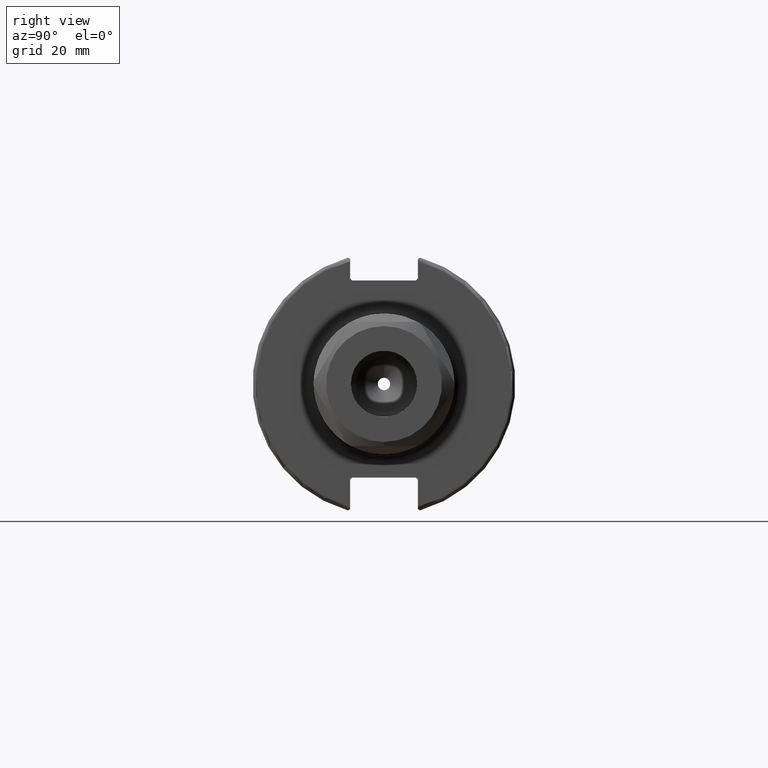
[diagram: clean part render]
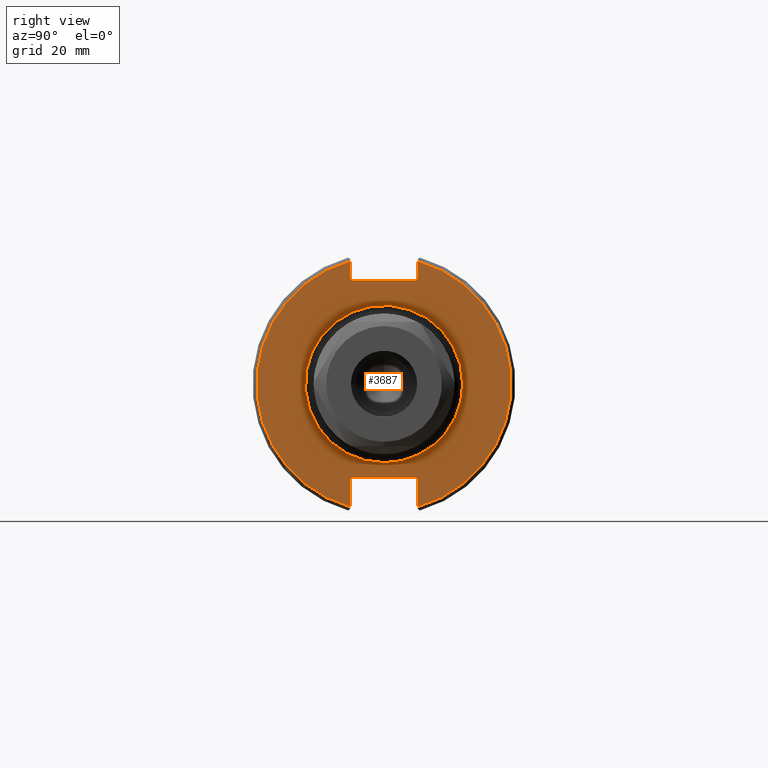
[diagram: same view with one face highlighted and labeled with its STEP entity id]
A machine part, right view. The second image highlights one B-rep face of the part: STEP entity #3687.
In plain terms, the highlighted planar face has unit normal (1, 0, 0).
Its self-contained STEP definition (entity closure, byte-faithful):
#162=FACE_BOUND('',#579,.T.);
#210=PLANE('',#4042);
#369=FACE_OUTER_BOUND('',#578,.T.);
#578=EDGE_LOOP('',(#2543,#2544,#2545,#2546,#2547,#2548,#2549,#2550,#2551,
#2552,#2553,#2554));
#579=EDGE_LOOP('',(#2555,#2556));
#831=LINE('',#5881,#1019);
#832=LINE('',#5883,#1020);
#833=LINE('',#5885,#1021);
#834=LINE('',#5887,#1022);
#835=LINE('',#5889,#1023);
#836=LINE('',#5893,#1024);
#837=LINE('',#5895,#1025);
#838=LINE('',#5897,#1026);
#839=LINE('',#5899,#1027);
#840=LINE('',#5900,#1028);
#1019=VECTOR('',#4636,10.);
#1020=VECTOR('',#4637,10.);
#1021=VECTOR('',#4638,10.);
#1022=VECTOR('',#4639,10.);
#1023=VECTOR('',#4640,10.);
#1024=VECTOR('',#4643,10.);
#1025=VECTOR('',#4644,10.);
#1026=VECTOR('',#4645,10.);
#1027=VECTOR('',#4646,10.);
#1028=VECTOR('',#4647,10.);
#1220=CIRCLE('',#4035,19.);
#1221=CIRCLE('',#4036,19.);
#1226=CIRCLE('',#4043,30.75);
#1227=CIRCLE('',#4044,30.75);
#1516=VERTEX_POINT('',#5862);
#1517=VERTEX_POINT('',#5864);
#1521=VERTEX_POINT('',#5877);
#1522=VERTEX_POINT('',#5878);
#1523=VERTEX_POINT('',#5880);
#1524=VERTEX_POINT('',#5882);
#1525=VERTEX_POINT('',#5884);
#1526=VERTEX_POINT('',#5886);
#1527=VERTEX_POINT('',#5888);
#1528=VERTEX_POINT('',#5890);
#1529=VERTEX_POINT('',#5892);
#1530=VERTEX_POINT('',#5894);
#1531=VERTEX_POINT('',#5896);
#1532=VERTEX_POINT('',#5898);
#1932=EDGE_CURVE('',#1516,#1517,#1220,.T.);
#1933=EDGE_CURVE('',#1517,#1516,#1221,.T.);
#1939=EDGE_CURVE('',#1521,#1522,#1226,.T.);
#1940=EDGE_CURVE('',#1521,#1523,#831,.T.);
#1941=EDGE_CURVE('',#1524,#1523,#832,.T.);
#1942=EDGE_CURVE('',#1524,#1525,#833,.T.);
#1943=EDGE_CURVE('',#1526,#1525,#834,.T.);
#1944=EDGE_CURVE('',#1526,#1527,#835,.T.);
#1945=EDGE_CURVE('',#1528,#1527,#1227,.T.);
#1946=EDGE_CURVE('',#1528,#1529,#836,.T.);
#1947=EDGE_CURVE('',#1530,#1529,#837,.T.);
#1948=EDGE_CURVE('',#1530,#1531,#838,.T.);
#1949=EDGE_CURVE('',#1532,#1531,#839,.T.);
#1950=EDGE_CURVE('',#1532,#1522,#840,.T.);
#2543=ORIENTED_EDGE('',*,*,#1939,.F.);
#2544=ORIENTED_EDGE('',*,*,#1940,.T.);
#2545=ORIENTED_EDGE('',*,*,#1941,.F.);
#2546=ORIENTED_EDGE('',*,*,#1942,.T.);
#2547=ORIENTED_EDGE('',*,*,#1943,.F.);
#2548=ORIENTED_EDGE('',*,*,#1944,.T.);
#2549=ORIENTED_EDGE('',*,*,#1945,.F.);
#2550=ORIENTED_EDGE('',*,*,#1946,.T.);
#2551=ORIENTED_EDGE('',*,*,#1947,.F.);
#2552=ORIENTED_EDGE('',*,*,#1948,.T.);
#2553=ORIENTED_EDGE('',*,*,#1949,.F.);
#2554=ORIENTED_EDGE('',*,*,#1950,.T.);
#2555=ORIENTED_EDGE('',*,*,#1933,.F.);
#2556=ORIENTED_EDGE('',*,*,#1932,.F.);
#3687=ADVANCED_FACE('',(#369,#162),#210,.T.);
#4035=AXIS2_PLACEMENT_3D('',#5865,#4617,#4618);
#4036=AXIS2_PLACEMENT_3D('',#5866,#4619,#4620);
#4042=AXIS2_PLACEMENT_3D('',#5876,#4632,#4633);
#4043=AXIS2_PLACEMENT_3D('',#5879,#4634,#4635);
#4044=AXIS2_PLACEMENT_3D('',#5891,#4641,#4642);
#4617=DIRECTION('center_axis',(1.,0.,0.));
#4618=DIRECTION('ref_axis',(0.,-1.,-1.22464679914735E-16));
#4619=DIRECTION('center_axis',(1.,0.,0.));
#4620=DIRECTION('ref_axis',(0.,-1.,-1.22464679914735E-16));
#4632=DIRECTION('center_axis',(1.,0.,0.));
#4633=DIRECTION('ref_axis',(0.,0.,-1.));
#4634=DIRECTION('center_axis',(-1.,0.,0.));
#4635=DIRECTION('ref_axis',(0.,1.,-6.12323399573677E-17));
#4636=DIRECTION('',(0.,0.,-1.));
#4637=DIRECTION('',(0.,0.707106781186549,0.707106781186546));
#4638=DIRECTION('',(0.,-1.,0.));
#4639=DIRECTION('',(0.,0.70710678118655,-0.707106781186545));
#4640=DIRECTION('',(0.,0.,1.));
#4641=DIRECTION('center_axis',(-1.,0.,0.));
#4642=DIRECTION('ref_axis',(0.,-1.,1.60812264967664E-16));
#4643=DIRECTION('',(0.,0.,1.));
#4644=DIRECTION('',(0.,-0.707106781186549,-0.707106781186546));
#4645=DIRECTION('',(0.,1.,0.));
#4646=DIRECTION('',(0.,-0.707106781186549,0.707106781186546));
#4647=DIRECTION('',(0.,0.,-1.));
#5862=CARTESIAN_POINT('',(19.05,-2.32682891837997E-15,-19.));
#5864=CARTESIAN_POINT('',(19.05,19.,4.65365783675994E-15));
#5865=CARTESIAN_POINT('Origin',(19.05,0.,0.));
#5866=CARTESIAN_POINT('Origin',(19.05,0.,0.));
#5876=CARTESIAN_POINT('Origin',(19.05,0.,0.));
#5877=CARTESIAN_POINT('',(19.05,8.19,29.6392712461019));
#5878=CARTESIAN_POINT('',(19.05,8.19,-29.6392712461019));
#5879=CARTESIAN_POINT('Origin',(19.05,0.,0.));
#5880=CARTESIAN_POINT('',(19.05,8.19,25.5));
#5881=CARTESIAN_POINT('',(19.05,8.19,12.5));
#5882=CARTESIAN_POINT('',(19.05,7.69,25.));
#5883=CARTESIAN_POINT('',(19.05,-0.35750000000001,16.9525));
#5884=CARTESIAN_POINT('',(19.05,-7.69,25.));
#5885=CARTESIAN_POINT('',(19.05,0.,25.));
#5886=CARTESIAN_POINT('',(19.05,-8.19,25.5));
#5887=CARTESIAN_POINT('',(19.05,0.357500000000014,16.9525));
#5888=CARTESIAN_POINT('',(19.05,-8.19,29.6392712461019));
#5889=CARTESIAN_POINT('',(19.05,-8.19,12.5));
#5890=CARTESIAN_POINT('',(19.05,-8.19,-29.6392712461019));
#5891=CARTESIAN_POINT('Origin',(19.05,0.,0.));
#5892=CARTESIAN_POINT('',(19.05,-8.19,-23.1));
#5893=CARTESIAN_POINT('',(19.05,-8.19,-11.3));
#5894=CARTESIAN_POINT('',(19.05,-7.69,-22.6));
#5895=CARTESIAN_POINT('',(19.05,-0.242499999999991,-15.1525));
#5896=CARTESIAN_POINT('',(19.05,7.69,-22.6));
#5897=CARTESIAN_POINT('',(19.05,-2.77555756156289E-16,-22.6));
#5898=CARTESIAN_POINT('',(19.05,8.19,-23.1));
#5899=CARTESIAN_POINT('',(19.05,0.242499999999989,-15.1525));
#5900=CARTESIAN_POINT('',(19.05,8.19,-11.3));